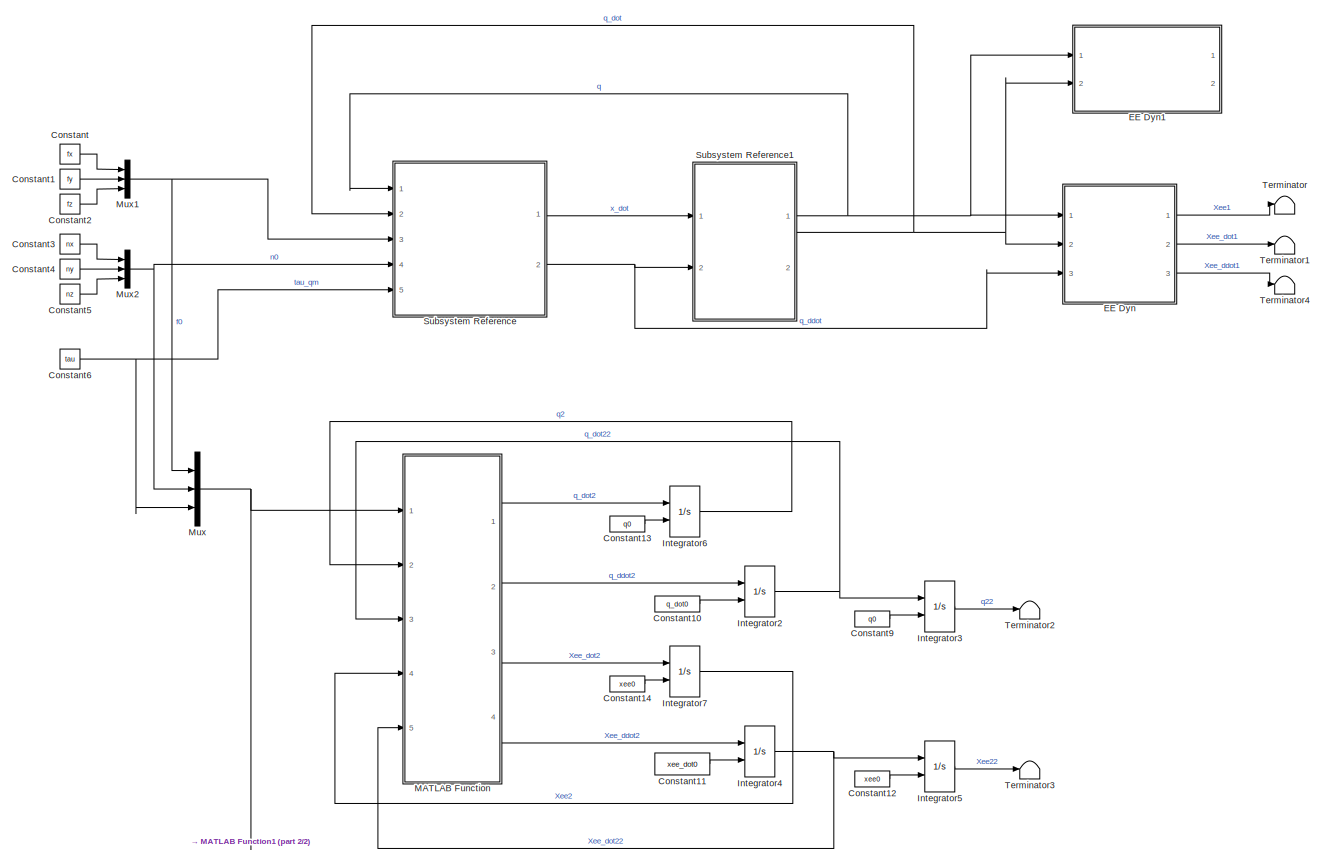
[diagram: root canvas - part 1/2, full width, middle band]
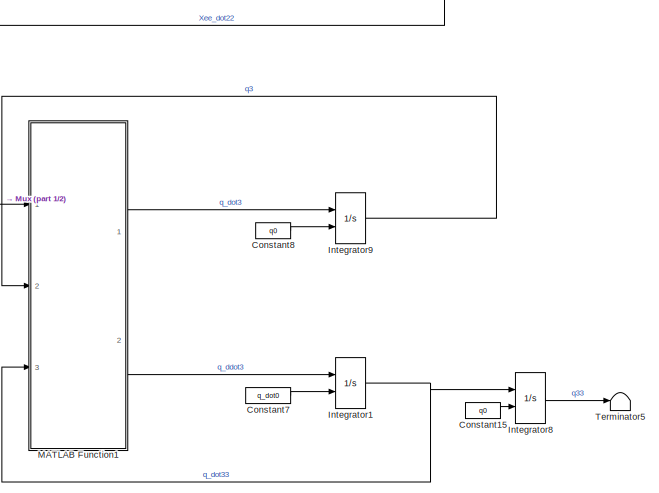
[diagram: root canvas - part 2/2, bottom center region]
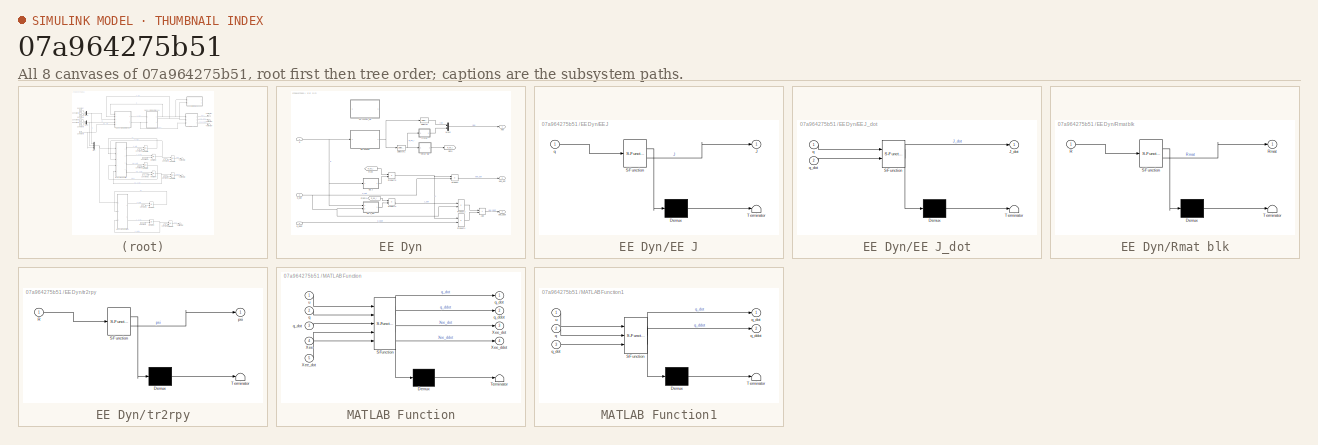
[diagram: thumbnail index - all 8 canvases of the model, root first then tree order]
MODEL slx_07a964275b51
KIND model
CONFIG AbsTol = auto
CONFIG EnableMultiTasking = off
CONFIG FixedStep = auto
CONFIG MaxStep = 0.01
CONFIG MinStep = auto
CONFIG RelTol = 1e-3
CONFIG SampleTimeConstraint = Unconstrained
CONFIG SolverName = ode15s
CONFIG StartTime = 0.0
CONFIG StopTime = 5
BLOCK [Constant] Constant
  Value = fx
BLOCK [Constant] Constant1
  Value = fy
BLOCK [Constant] Constant10
  Value = q_dot0
BLOCK [Constant] Constant11
  Value = xee_dot0
BLOCK [Constant] Constant12
  Value = xee0
BLOCK [Constant] Constant13
  Value = q0
BLOCK [Constant] Constant14
  Value = xee0
BLOCK [Constant] Constant15
  Commented = on
  Value = q0
BLOCK [Constant] Constant2
  Value = fz
BLOCK [Constant] Constant3
  Value = nx
BLOCK [Constant] Constant4
  Value = ny
BLOCK [Constant] Constant5
  Value = nz
BLOCK [Constant] Constant6
  Value = tau
BLOCK [Constant] Constant7
  Commented = on
  Value = q_dot0
BLOCK [Constant] Constant8
  Commented = on
  Value = q0
BLOCK [Constant] Constant9
  Value = q0
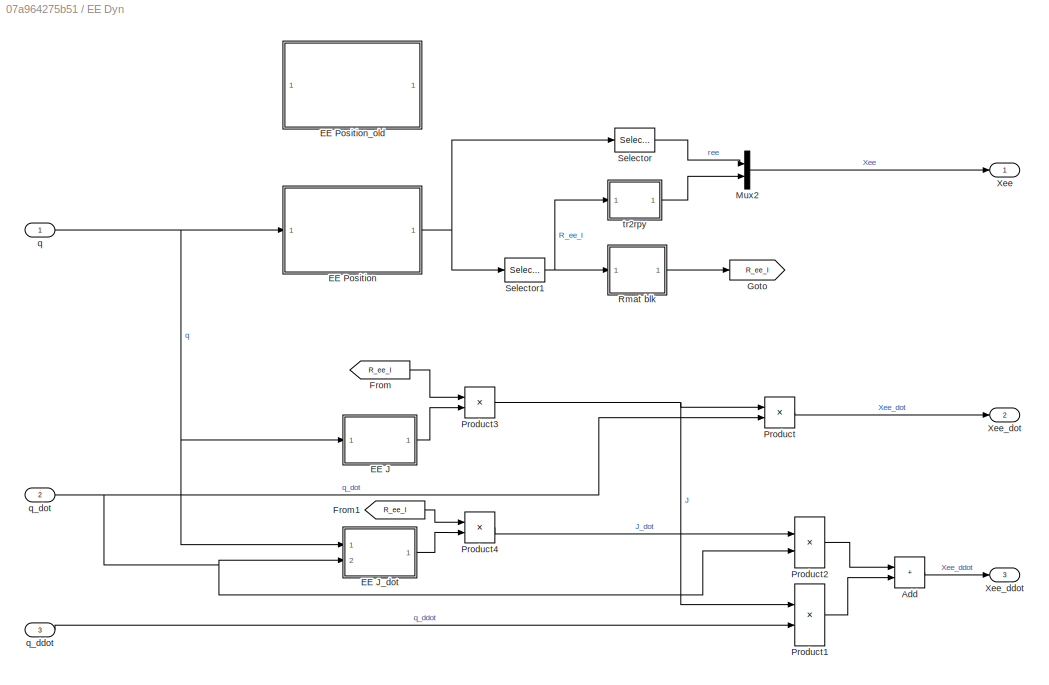
BLOCK [SubSystem] EE Dyn
  Ports = [3, 3]
  RequestExecContextInheritance = off
BLOCK [Sum] EE Dyn/Add
  IconShape = rectangular
  Ports = [2, 1]
BLOCK [SubSystem] EE Dyn/EE J
  ErrorFcn = Stateflow.Translate.translate
  PermitHierarchicalResolution = ExplicitOnly
  Ports = [1, 1]
  RequestExecContextInheritance = off
  SFBlockType = MATLAB Function
  TreatAsAtomicUnit = on
BLOCK [Demux] EE Dyn/EE J/ Demux 
  Outputs = 1
  Ports = [1, 1]
BLOCK [S-Function] EE Dyn/EE J/ SFunction 
  EnableBusSupport = on
  FunctionName = sf_sfun
  PortCounts = [1 2]
  Ports = [1, 2]
  SFcnIsStateOwnerBlock = off
  SFunctionDeploymentMode = off
  Tag = Stateflow S-Function 3
BLOCK [Terminator] EE Dyn/EE J/ Terminator 
BLOCK [Outport] EE Dyn/EE J/J
BLOCK [Inport] EE Dyn/EE J/q
BLOCK [SubSystem] EE Dyn/EE J_dot
  ErrorFcn = Stateflow.Translate.translate
  PermitHierarchicalResolution = ExplicitOnly
  Ports = [2, 1]
  RequestExecContextInheritance = off
  SFBlockType = MATLAB Function
  TreatAsAtomicUnit = on
BLOCK [Demux] EE Dyn/EE J_dot/ Demux 
  Outputs = 1
  Ports = [1, 1]
BLOCK [S-Function] EE Dyn/EE J_dot/ SFunction 
  EnableBusSupport = on
  FunctionName = sf_sfun
  PortCounts = [2 2]
  Ports = [2, 2]
  SFcnIsStateOwnerBlock = off
  SFunctionDeploymentMode = off
  Tag = Stateflow S-Function 4
BLOCK [Terminator] EE Dyn/EE J_dot/ Terminator 
BLOCK [Outport] EE Dyn/EE J_dot/J_dot
BLOCK [Inport] EE Dyn/EE J_dot/q
BLOCK [Inport] EE Dyn/EE J_dot/q_dot
  Port = 2
BLOCK [SubSystem] EE Dyn/EE Position
  Ports = [1, 1]
  ReferencedSubsystem = GetTransformEE
  RequestExecContextInheritance = off
  spaceRobot = sr
BLOCK [SubSystem] EE Dyn/EE Position_old
  Commented = through
  Ports = [1, 1]
  ReferencedSubsystem = GetTransform
  RequestExecContextInheritance = off
  SimulateUsing = Interpreted execution
  sourceBody = endeffector
  spaceRobot = sr
  targetBody = inertial
BLOCK [From] EE Dyn/From
  GotoTag = R_ee_I
BLOCK [From] EE Dyn/From1
  GotoTag = R_ee_I
BLOCK [Goto] EE Dyn/Goto
  GotoTag = R_ee_I
BLOCK [Mux] EE Dyn/Mux2
  DisplayOption = bar
  Inputs = 2
  Ports = [2, 1]
BLOCK [Product] EE Dyn/Product
  Multiplication = Matrix(*)
  Ports = [2, 1]
BLOCK [Product] EE Dyn/Product1
  Multiplication = Matrix(*)
  Ports = [2, 1]
BLOCK [Product] EE Dyn/Product2
  Multiplication = Matrix(*)
  Ports = [2, 1]
BLOCK [Product] EE Dyn/Product3
  Multiplication = Matrix(*)
  Ports = [2, 1]
BLOCK [Product] EE Dyn/Product4
  Multiplication = Matrix(*)
  Ports = [2, 1]
BLOCK [SubSystem] EE Dyn/Rmat blk
  ErrorFcn = Stateflow.Translate.translate
  PermitHierarchicalResolution = ExplicitOnly
  Ports = [1, 1]
  RequestExecContextInheritance = off
  SFBlockType = MATLAB Function
  TreatAsAtomicUnit = on
BLOCK [Demux] EE Dyn/Rmat blk/ Demux 
  Outputs = 1
  Ports = [1, 1]
BLOCK [S-Function] EE Dyn/Rmat blk/ SFunction 
  EnableBusSupport = on
  FunctionName = sf_sfun
  PortCounts = [1 2]
  Ports = [1, 2]
  SFcnIsStateOwnerBlock = off
  SFunctionDeploymentMode = off
  Tag = Stateflow S-Function 5
BLOCK [Terminator] EE Dyn/Rmat blk/ Terminator 
BLOCK [Inport] EE Dyn/Rmat blk/R
BLOCK [Outport] EE Dyn/Rmat blk/Rmat
BLOCK [Selector] EE Dyn/Selector
  IndexOptions = Index vector (dialog),Index vector (dialog)
  Indices = [1:3],4
  InputPortWidth = [4 4]
  NumberOfDimensions = 2
  OutputSizes = 1,1
  Ports = [1, 1]
BLOCK [Selector] EE Dyn/Selector1
  IndexOptions = Index vector (dialog),Index vector (dialog)
  Indices = [1:3],[1:3]
  InputPortWidth = [4 4]
  NumberOfDimensions = 2
  OutputSizes = 1,1
  Ports = [1, 1]
BLOCK [Outport] EE Dyn/Xee
BLOCK [Outport] EE Dyn/Xee_ddot
  Port = 3
BLOCK [Outport] EE Dyn/Xee_dot
  Port = 2
BLOCK [Inport] EE Dyn/q
BLOCK [Inport] EE Dyn/q_ddot
  Port = 3
BLOCK [Inport] EE Dyn/q_dot
  Port = 2
BLOCK [SubSystem] EE Dyn/tr2rpy
  ErrorFcn = Stateflow.Translate.translate
  PermitHierarchicalResolution = ExplicitOnly
  Ports = [1, 1]
  RequestExecContextInheritance = off
  SFBlockType = MATLAB Function
  TreatAsAtomicUnit = on
BLOCK [Demux] EE Dyn/tr2rpy/ Demux 
  Outputs = 1
  Ports = [1, 1]
BLOCK [S-Function] EE Dyn/tr2rpy/ SFunction 
  EnableBusSupport = on
  FunctionName = sf_sfun
  PortCounts = [1 2]
  Ports = [1, 2]
  SFcnIsStateOwnerBlock = off
  SFunctionDeploymentMode = off
  Tag = Stateflow S-Function 7
BLOCK [Terminator] EE Dyn/tr2rpy/ Terminator 
BLOCK [Inport] EE Dyn/tr2rpy/R
BLOCK [Outport] EE Dyn/tr2rpy/psi
BLOCK [SubSystem] EE Dyn1
  Ports = [2, 2]
  ReferencedSubsystem = EE_Dyn
  RequestExecContextInheritance = off
  spaceRobot = sr
BLOCK [Integrator] Integrator1
  Commented = on
  InitialConditionSource = external
  Ports = [2, 1]
BLOCK [Integrator] Integrator2
  InitialConditionSource = external
  Ports = [2, 1]
BLOCK [Integrator] Integrator3
  InitialConditionSource = external
  Ports = [2, 1]
BLOCK [Integrator] Integrator4
  InitialConditionSource = external
  Ports = [2, 1]
BLOCK [Integrator] Integrator5
  InitialConditionSource = external
  Ports = [2, 1]
BLOCK [Integrator] Integrator6
  InitialConditionSource = external
  Ports = [2, 1]
BLOCK [Integrator] Integrator7
  InitialConditionSource = external
  Ports = [2, 1]
BLOCK [Integrator] Integrator8
  Commented = on
  InitialConditionSource = external
  Ports = [2, 1]
BLOCK [Integrator] Integrator9
  Commented = on
  InitialConditionSource = external
  Ports = [2, 1]
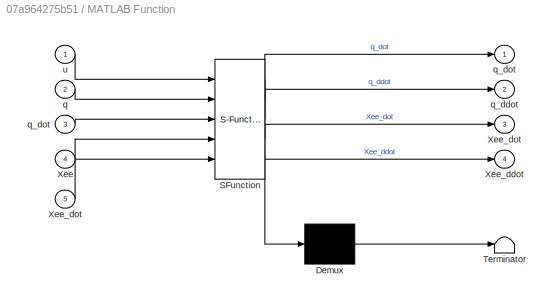
BLOCK [SubSystem] MATLAB Function
  ErrorFcn = Stateflow.Translate.translate
  PermitHierarchicalResolution = ExplicitOnly
  Ports = [5, 4]
  RequestExecContextInheritance = off
  SFBlockType = MATLAB Function
  TreatAsAtomicUnit = on
BLOCK [Demux] MATLAB Function/ Demux 
  Outputs = 1
  Ports = [1, 1]
BLOCK [S-Function] MATLAB Function/ SFunction 
  EnableBusSupport = on
  FunctionName = sf_sfun
  PortCounts = [5 5]
  Ports = [5, 5]
  SFcnIsStateOwnerBlock = off
  SFunctionDeploymentMode = off
  Tag = Stateflow S-Function 2
BLOCK [Terminator] MATLAB Function/ Terminator 
BLOCK [Inport] MATLAB Function/Xee
  Port = 4
BLOCK [Outport] MATLAB Function/Xee_ddot
  Port = 4
BLOCK [Outport] MATLAB Function/Xee_dot
  Port = 3
BLOCK [Inport] MATLAB Function/Xee_dot 
  Port = 5
BLOCK [Inport] MATLAB Function/q
  Port = 2
BLOCK [Outport] MATLAB Function/q_ddot
  Port = 2
BLOCK [Outport] MATLAB Function/q_dot
BLOCK [Inport] MATLAB Function/q_dot 
  Port = 3
BLOCK [Inport] MATLAB Function/u
BLOCK [SubSystem] MATLAB Function1
  Commented = on
  ErrorFcn = Stateflow.Translate.translate
  PermitHierarchicalResolution = ExplicitOnly
  Ports = [3, 2]
  RequestExecContextInheritance = off
  SFBlockType = MATLAB Function
  TreatAsAtomicUnit = on
BLOCK [Demux] MATLAB Function1/ Demux 
  Outputs = 1
  Ports = [1, 1]
BLOCK [S-Function] MATLAB Function1/ SFunction 
  EnableBusSupport = on
  FunctionName = sf_sfun
  PortCounts = [3 3]
  Ports = [3, 3]
  SFcnIsStateOwnerBlock = off
  SFunctionDeploymentMode = off
  Tag = Stateflow S-Function 9
BLOCK [Terminator] MATLAB Function1/ Terminator 
BLOCK [Inport] MATLAB Function1/q
  Port = 2
BLOCK [Outport] MATLAB Function1/q_ddot
  Port = 2
BLOCK [Outport] MATLAB Function1/q_dot
BLOCK [Inport] MATLAB Function1/q_dot 
  Port = 3
BLOCK [Inport] MATLAB Function1/u
BLOCK [Mux] Mux
  DisplayOption = bar
  Inputs = 3
  Ports = [3, 1]
BLOCK [Mux] Mux1
  DisplayOption = bar
  Inputs = 3
  Ports = [3, 1]
BLOCK [Mux] Mux2
  DisplayOption = bar
  Inputs = 3
  Ports = [3, 1]
BLOCK [SubSystem] Subsystem Reference
  Ports = [5, 2]
  ReferencedSubsystem = ForwardDynamics
  RequestExecContextInheritance = off
  SimulateUsing = Interpreted execution
  spaceRobot = sr
BLOCK [SubSystem] Subsystem Reference1
  Ports = [2, 2]
  ReferencedSubsystem = StatePropagation
  RequestExecContextInheritance = off
  q_0 = q0
  q_dot_0 = q_dot0
  spaceRobot = sr
BLOCK [Terminator] Terminator
BLOCK [Terminator] Terminator1
BLOCK [Terminator] Terminator2
BLOCK [Terminator] Terminator3
BLOCK [Terminator] Terminator4
BLOCK [Terminator] Terminator5
  Commented = on
LINE Constant10:1 -> Integrator2:2
LINE Constant11:1 -> Integrator4:2
LINE Constant12:1 -> Integrator5:2
LINE Constant13:1 -> Integrator6:2
LINE Constant14:1 -> Integrator7:2
LINE Constant15:1 -> Integrator8:2
LINE Constant1:1 -> Mux1:2
LINE Constant2:1 -> Mux1:3
LINE Constant3:1 -> Mux2:1
LINE Constant4:1 -> Mux2:2
LINE Constant5:1 -> Mux2:3
NET Constant6:1 -> Mux:3, Subsystem Reference:5
LINE Constant7:1 -> Integrator1:2
LINE Constant8:1 -> Integrator9:2
LINE Constant9:1 -> Integrator3:2
LINE Constant:1 -> Mux1:1
LINE EE Dyn/Add:1 -> EE Dyn/Xee_ddot:1
LINE EE Dyn/EE J:1 -> EE Dyn/Product3:2
LINE EE Dyn/EE J_dot:1 -> EE Dyn/Product4:2
NET EE Dyn/EE Position:1 -> EE Dyn/Selector1:1, EE Dyn/Selector:1
LINE EE Dyn/From1:1 -> EE Dyn/Product4:1
LINE EE Dyn/From:1 -> EE Dyn/Product3:1
LINE EE Dyn/Mux2:1 -> EE Dyn/Xee:1
LINE EE Dyn/Product1:1 -> EE Dyn/Add:2
LINE EE Dyn/Product2:1 -> EE Dyn/Add:1
NET EE Dyn/Product3:1 -> EE Dyn/Product1:1, EE Dyn/Product:1
LINE EE Dyn/Product4:1 -> EE Dyn/Product2:1
LINE EE Dyn/Product:1 -> EE Dyn/Xee_dot:1
LINE EE Dyn/Rmat blk:1 -> EE Dyn/Goto:1
NET EE Dyn/Selector1:1 -> EE Dyn/Rmat blk:1, EE Dyn/tr2rpy:1
LINE EE Dyn/Selector:1 -> EE Dyn/Mux2:1
NET EE Dyn/q:1 -> EE Dyn/EE J:1, EE Dyn/EE J_dot:1, EE Dyn/EE Position:1
LINE EE Dyn/q_ddot:1 -> EE Dyn/Product1:2
NET EE Dyn/q_dot:1 -> EE Dyn/EE J_dot:2, EE Dyn/Product2:2, EE Dyn/Product:2
LINE EE Dyn/tr2rpy:1 -> EE Dyn/Mux2:2
LINE EE Dyn:1 -> Terminator:1
LINE EE Dyn:2 -> Terminator1:1
LINE EE Dyn:3 -> Terminator4:1
NET Integrator1:1 -> Integrator8:1, MATLAB Function1:3
NET Integrator2:1 -> Integrator3:1, MATLAB Function:3
LINE Integrator3:1 -> Terminator2:1
NET Integrator4:1 -> Integrator5:1, MATLAB Function:5
LINE Integrator5:1 -> Terminator3:1
LINE Integrator6:1 -> MATLAB Function:2
LINE Integrator7:1 -> MATLAB Function:4
LINE Integrator8:1 -> Terminator5:1
LINE Integrator9:1 -> MATLAB Function1:2
LINE MATLAB Function1:1 -> Integrator9:1
LINE MATLAB Function1:2 -> Integrator1:1
LINE MATLAB Function:1 -> Integrator6:1
LINE MATLAB Function:2 -> Integrator2:1
LINE MATLAB Function:3 -> Integrator7:1
LINE MATLAB Function:4 -> Integrator4:1
NET Mux1:1 -> Mux:1, Subsystem Reference:3
NET Mux2:1 -> Mux:2, Subsystem Reference:4
NET Mux:1 -> MATLAB Function1:1, MATLAB Function:1
NET Subsystem Reference1:1 -> EE Dyn1:1, EE Dyn:1, Subsystem Reference:1
NET Subsystem Reference1:2 -> EE Dyn1:2, EE Dyn:2, Subsystem Reference:2
LINE Subsystem Reference:1 -> Subsystem Reference1:1
NET Subsystem Reference:2 -> EE Dyn:3, Subsystem Reference1:2
note: NET lines group one-source signal fan-out (src -> all destinations, sorted); 1:1 wires keep LINE
CHART MATLAB Function states=1 transitions=1
  STATE_LABEL 'eML_blk_kernel()'
  STATE_LABEL 'SCRIPT:\nfunction [q_dot, q_ddot, Xee_dot, Xee_ddot] = fcn(u, q, q_dot, Xee, Xee_dot)\n\nx = [q; Xee; q_dot; Xee_dot];\n\nsr_info = SR6_info();\n% sr_info = SR2_info();\n\nN = sr_info.N;\n\ndx = sr_ee_state_func(x, u, sr_info);\n\n% q_dot = dx(1:8);\n% q_ddot = dx(15:22);\n% \n% Xee_dot = dx(9:14);\n% Xee_ddot = dx(23:28);\n\nq_dot = dx(1:N);\nq_ddot = dx(N+7:2*N+6);\n\nXee_dot = dx(N+1:N+6);\nXee_ddot = dx(end-5:end);...<+3ch>'
CHART EE Dyn/EE J states=1 transitions=1
  STATE_LABEL 'eML_blk_kernel()'
  STATE_LABEL 'SCRIPT:\nfunction J = fcn(q)\n% sr_info = SR2_info();\nsr_info = SR6_info();\n\n% 1 - Kinematics\n% [Rb, Ra, Rm] = RFunc_SR2(q);\n[Rb, Ra, Rm] = RFunc_SR6(q);\nRm = reshape(Rm, 3, 3, []); % Split Rm to nk 3x3 arrays\n\n% 2 - Kinetics\n% [~, ~, ~, A, ~] = Kin(sr_info, q, zeros(8, 1), zeros(8, 1), {Rb, Ra, Rm});\n[~, ~, ~, A, ~] = Kin(sr_info, q, zeros(12, 1), zeros(12, 1), {Rb, Ra, Rm});\n\n% 3 - J\nJ = Jacobian(...<+122ch>'
CHART EE Dyn/EE J_dot states=1 transitions=1
  STATE_LABEL 'eML_blk_kernel()'
  STATE_LABEL 'SCRIPT:\nfunction J_dot = fcn(q, q_dot)\nsr_info = SR6_info();\n% sr_info = SR2_info();\n\n% 1 - Kinematics\n% [Rb, Ra, Rm] = RFunc_SR2(q);\n[Rb, Ra, Rm] = RFunc_SR6(q);\nRm = reshape(Rm, 3, 3, []); % Split Rm to nk 3x3 arrays\n\n% 2 - Kinetics\n% [t, ~, Omega, A, A_dot] = Kin(sr_info, q, q_dot, zeros(8, 1), {Rb, Ra, Rm});\n[t, ~, Omega, A, A_dot] = Kin(sr_info, q, q_dot, zeros(12, 1), {Rb, Ra, Rm});\nwb = t{1...<+98ch>'
CHART EE Dyn/Rmat blk states=1 transitions=1
  STATE_LABEL 'eML_blk_kernel()'
  STATE_LABEL 'SCRIPT:\nfunction Rmat = fcn(R)\n\nRmat = blkdiag(R, R);'
CHART EE Dyn/tr2rpy states=1 transitions=1
  STATE_LABEL 'eML_blk_kernel()'
  STATE_LABEL "SCRIPT:\nfunction psi = fcn(R)\n% Computes euler angle from rotation matrix\n\npsi = zeros(3, 1);\n\ntemp = rotm2eul(R, 'ZYX');\npsi(1) = temp(3);\npsi(2) = temp(2);\npsi(3) = temp(1);\n"
CHART MATLAB Function1 states=1 transitions=1
  STATE_LABEL 'eML_blk_kernel()'
  STATE_LABEL 'SCRIPT:\nfunction [q_dot, q_ddot] = fcn(u, q, q_dot)\n\nx = [q; q_dot];\n\n\ndx = sr_state_func(x, u);\n\nq_dot = dx(1:8);\nq_ddot = dx(9:16);\n\n\n\n'
CHART  states=0 transitions=0
CHART  states=0 transitions=0
CHART  states=0 transitions=0
CHART  states=0 transitions=0
CHART  states=0 transitions=0
CHART  states=0 transitions=0
